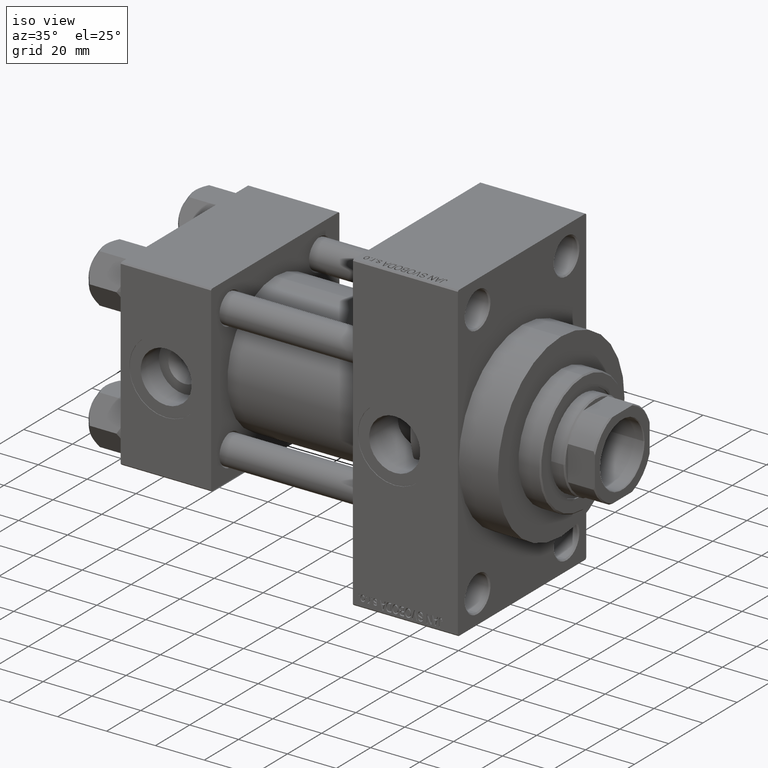
[diagram: clean part render]
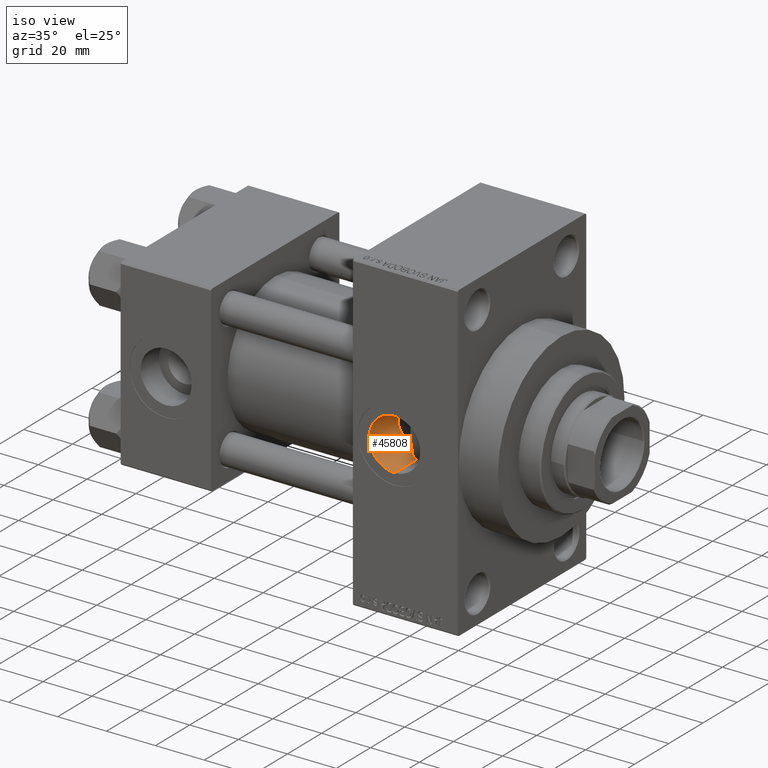
[diagram: same view with one face highlighted and labeled with its STEP entity id]
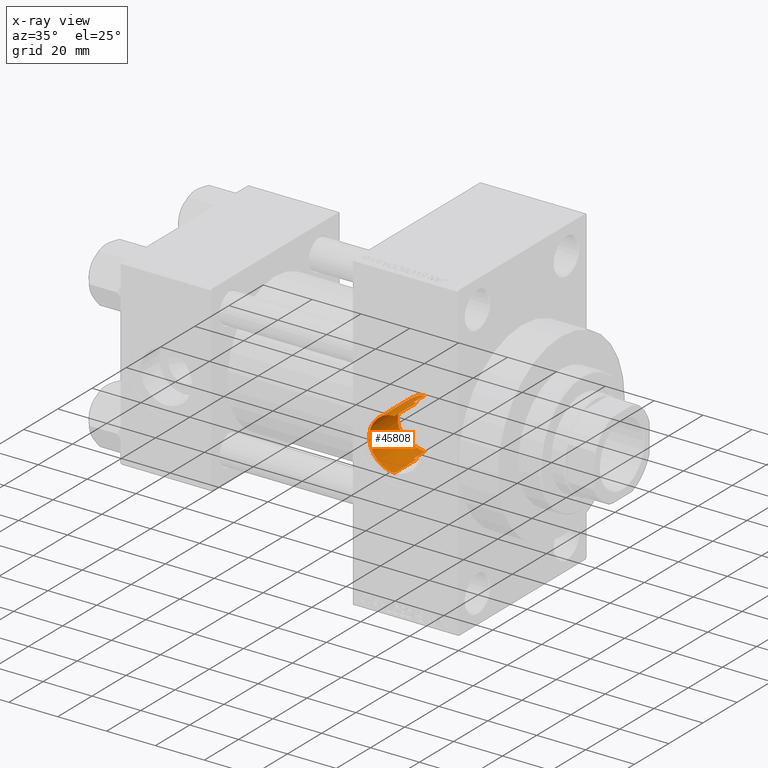
[diagram: x-ray of the same camera — body ghosted, the highlighted face saturated]
A machine part, iso view. The second image highlights one B-rep face of the part: STEP entity #45808.
The next image is the same camera in x-ray: the body ghosted, the highlighted face saturated — about 0% of this face is hidden behind the body in this view.
In plain terms, the highlighted cylindrical surface (edge-blend (fillet) strip) has radius 10.48 mm, axis along (-0, -1, -0).
Its self-contained STEP definition (entity closure, byte-faithful):
#566 = CARTESIAN_POINT ( 'NONE',  ( 101.5344517509937816, -20.49259976991984900, 0.6385949194643817384 ) ) ;
#656 = VERTEX_POINT ( 'NONE', #31120 ) ;
#1070 = DIRECTION ( 'NONE',  ( 0.000000000000000000, 0.000000000000000000, -1.000000000000000000 ) ) ;
#3440 = CARTESIAN_POINT ( 'NONE',  ( 101.9890436469207629, -20.26322258072476856, 3.165949580637788419 ) ) ;
#3528 = VECTOR ( 'NONE', #3993, 1000.000000000000000 ) ;
#3993 = DIRECTION ( 'NONE',  ( -0.000000000000000000, -1.000000000000000000, -8.673617379884036705E-17 ) ) ;
#4294 = VERTEX_POINT ( 'NONE', #31383 ) ;
#5077 = CARTESIAN_POINT ( 'NONE',  ( 110.7400000000000375, -17.66372554134602879, 10.40398000767014786 ) ) ;
#6035 = CARTESIAN_POINT ( 'NONE',  ( 110.7400000000000375, -24.37226292324945831, -10.40398000767014430 ) ) ;
#6231 = CYLINDRICAL_SURFACE ( 'NONE', #40244, 10.48000000000000043 ) ;
#7204 = CARTESIAN_POINT ( 'NONE',  ( 111.5796744023297293, -24.33967132070604222, 10.48000000000000220 ) ) ;
#7270 = CARTESIAN_POINT ( 'NONE',  ( 106.5625638996512379, -18.43095443978125658, 8.980924693845388163 ) ) ;
#7331 = CARTESIAN_POINT ( 'NONE',  ( 112.0000000000000000, -37.29999999999999005, 1.734723475976808635E-17 ) ) ;
#7511 = CARTESIAN_POINT ( 'NONE',  ( 102.7306856739460130, -19.90614274524635263, 4.929954435101433496 ) ) ;
#7667 = B_SPLINE_CURVE_WITH_KNOTS ( 'NONE', 3,
 ( #21991, #7204, #40351, #21747 ),
 .UNSPECIFIED., .F., .F.,
 ( 4, 4 ),
 ( 0.03437190755806011910, 0.03561776921873218565 ),
 .UNSPECIFIED. ) ;
#7977 = CARTESIAN_POINT ( 'NONE',  ( 110.1032516901698131, -17.70914647298970479, -10.32686501227466991 ) ) ;
#8152 = VERTEX_POINT ( 'NONE', #6035 ) ;
#9826 = ORIENTED_EDGE ( 'NONE', *, *, #10999, .F. ) ;
#9851 = CIRCLE ( 'NONE', #28883, 10.48000000000000043 ) ;
#10005 = ORIENTED_EDGE ( 'NONE', *, *, #14153, .T. ) ;
#10176 = ORIENTED_EDGE ( 'NONE', *, *, #23155, .T. ) ;
#10342 = ORIENTED_EDGE ( 'NONE', *, *, #14474, .T. ) ;
#10527 = DIRECTION ( 'NONE',  ( -0.000000000000000000, -1.000000000000000000, -8.673617379884036705E-17 ) ) ;
#10863 = CARTESIAN_POINT ( 'NONE',  ( 104.5952910884241902, -19.10772262467355631, 7.442466219502669844 ) ) ;
#10999 = EDGE_CURVE ( 'NONE', #8152, #32001, #28032, .T. ) ;
#11280 = VERTEX_POINT ( 'NONE', #45058 ) ;
#11315 = B_SPLINE_CURVE_WITH_KNOTS ( 'NONE', 3,
 ( #36608, #7977, #14915, #15374, #25634, #11784, #40187, #22291, #29440, #33033, #36840, #11331, #33260, #29910, #36374, #21820, #14446, #40649, #26320, #44474, #566, #29674, #36133, #40874, #3440, #18253, #7511, #32564, #47134, #28971, #43540, #10863, #25402, #39953, #7270, #32803, #19873, #37291, #23678, #41334, #12479, #5077 ),
 .UNSPECIFIED., .F., .F.,
 ( 4, 2, 2, 2, 2, 2, 2, 2, 2, 2, 2, 2, 2, 2, 2, 2, 2, 2, 2, 2, 4 ),
 ( 0.001255641847759100165, 0.003183192573321262479, 0.005110743298883425011, 0.006074518661664487194, 0.007038294024445550245, 0.008965844750007672878, 0.01089339547556979898, 0.01282094620113192335, 0.01474849692669404945, 0.01667604765225617208, 0.01763982301503723080, 0.01860359837781829298, 0.02053114910338042082, 0.02245869982894254865, 0.02342247519172361431, 0.02438625055450467996, 0.02631380128006680780, 0.02824135200562893910, 0.03016890273119106694, 0.03113267809397215341, 0.03209645345675323641 ),
 .UNSPECIFIED. ) ;
#11331 = CARTESIAN_POINT ( 'NONE',  ( 103.7633480690272307, -19.44527279565067701, -6.509652969840351133 ) ) ;
#11784 = CARTESIAN_POINT ( 'NONE',  ( 106.8359761179690537, -18.35797663056531093, -9.124777428372601307 ) ) ;
#12479 = CARTESIAN_POINT ( 'NONE',  ( 110.4216918361843938, -17.68643129984917906, 10.36543050198943483 ) ) ;
#13062 = EDGE_CURVE ( 'NONE', #28037, #4294, #32437, .T. ) ;
#14153 = EDGE_CURVE ( 'NONE', #4294, #32170, #9851, .T. ) ;
#14342 = CARTESIAN_POINT ( 'NONE',  ( 111.1611364518797984, -24.35049096341792918, -10.45498279016081611 ) ) ;
#14446 = CARTESIAN_POINT ( 'NONE',  ( 101.8164093016029881, -20.34981013074528278, -2.556519587097662249 ) ) ;
#14474 = EDGE_CURVE ( 'NONE', #36283, #11280, #11315, .T. ) ;
#14741 = DIRECTION ( 'NONE',  ( 0.000000000000000000, -1.000000000000000000, -8.673617379884036705E-17 ) ) ;
#14915 = CARTESIAN_POINT ( 'NONE',  ( 109.4784897197294242, -17.78800700420873682, -10.19241299303469184 ) ) ;
#15374 = CARTESIAN_POINT ( 'NONE',  ( 108.2521840516421747, -18.00281376538217515, -9.808015718346263512 ) ) ;
#16771 = EDGE_CURVE ( 'NONE', #11280, #656, #31430, .T. ) ;
#17048 = ORIENTED_EDGE ( 'NONE', *, *, #16771, .T. ) ;
#17333 = EDGE_LOOP ( 'NONE', ( #36040, #36520, #10005, #36347, #9826, #10176, #10342, #17048 ) ) ;
#17445 = CARTESIAN_POINT ( 'NONE',  ( 111.5811236364006049, -24.33967132070604222, -10.47999999999999865 ) ) ;
#18080 = LINE ( 'NONE', #40709, #3528 ) ;
#18100 = LINE ( 'NONE', #47224, #27525 ) ;
#18150 = CARTESIAN_POINT ( 'NONE',  ( 112.0000000000000000, -24.33967132070604222, -10.47999999999999865 ) ) ;
#18253 = CARTESIAN_POINT ( 'NONE',  ( 102.4502868388242831, -20.03936036188455461, 4.364110721517612923 ) ) ;
#19873 = CARTESIAN_POINT ( 'NONE',  ( 108.2502653915909860, -18.00341535633042156, 9.806875701523020794 ) ) ;
#21218 = DIRECTION ( 'NONE',  ( -0.000000000000000000, -1.000000000000000000, -8.673617379884036705E-17 ) ) ;
#21314 = CARTESIAN_POINT ( 'NONE',  ( 112.0000000000000000, -24.33967132070604222, -10.47999999999999865 ) ) ;
#21747 = CARTESIAN_POINT ( 'NONE',  ( 110.7400000000000375, -24.37226292324945476, 10.40398000767014786 ) ) ;
#21820 = CARTESIAN_POINT ( 'NONE',  ( 101.9952270668423182, -20.26018683615192373, -3.183883709941174533 ) ) ;
#21991 = CARTESIAN_POINT ( 'NONE',  ( 112.0000000000000000, -24.33967132070604222, 10.48000000000000220 ) ) ;
#22291 = CARTESIAN_POINT ( 'NONE',  ( 106.0387805937296406, -18.59819633995113719, -8.625125284583473828 ) ) ;
#23155 = EDGE_CURVE ( 'NONE', #8152, #36283, #18100, .T. ) ;
#23678 = CARTESIAN_POINT ( 'NONE',  ( 109.4730346836805097, -17.79626283494864580, 10.17591381474454870 ) ) ;
#23719 = EDGE_CURVE ( 'NONE', #28037, #656, #7667, .T. ) ;
#23791 = CARTESIAN_POINT ( 'NONE',  ( 110.7400000000000375, 37.50100000000001188, 10.40398000767015319 ) ) ;
#25402 = CARTESIAN_POINT ( 'NONE',  ( 105.0477987341367907, -18.93516161738703829, 7.866762516092458135 ) ) ;
#25634 = CARTESIAN_POINT ( 'NONE',  ( 107.6680749064292542, -18.13558458592092748, -9.563370120924318485 ) ) ;
#26320 = CARTESIAN_POINT ( 'NONE',  ( 101.5207372804246120, -20.49962308803801747, -0.6582148057585530676 ) ) ;
#27525 = VECTOR ( 'NONE', #29063, 1000.000000000000000 ) ;
#28032 = B_SPLINE_CURVE_WITH_KNOTS ( 'NONE', 3,
 ( #43676, #14342, #17445, #18150 ),
 .UNSPECIFIED., .F., .F.,
 ( 4, 4 ),
 ( 0.000000000000000000, 0.001255586767787659347 ),
 .UNSPECIFIED. ) ;
#28037 = VERTEX_POINT ( 'NONE', #46818 ) ;
#28077 = DIRECTION ( 'NONE',  ( -0.000000000000000000, -1.000000000000000000, -8.673617379884036705E-17 ) ) ;
#28883 = AXIS2_PLACEMENT_3D ( 'NONE', #7331, #14741, #1070 ) ;
#28971 = CARTESIAN_POINT ( 'NONE',  ( 103.7727607272253465, -19.44423810507252881, 6.499387800490811884 ) ) ;
#29063 = DIRECTION ( 'NONE',  ( 0.000000000000000000, 1.000000000000000000, 8.673617379884036705E-17 ) ) ;
#29440 = CARTESIAN_POINT ( 'NONE',  ( 105.7817464020296114, -18.68242470065479210, -8.441641166352756187 ) ) ;
#29674 = CARTESIAN_POINT ( 'NONE',  ( 101.5939347466840275, -20.46228577735420018, 1.284254479132852289 ) ) ;
#29910 = CARTESIAN_POINT ( 'NONE',  ( 102.7304936477648027, -19.90623884355988338, -4.929486581777925203 ) ) ;
#31116 = VECTOR ( 'NONE', #21218, 1000.000000000000000 ) ;
#31120 = CARTESIAN_POINT ( 'NONE',  ( 110.7400000000000375, -24.37226292324945476, 10.40398000767014786 ) ) ;
#31383 = CARTESIAN_POINT ( 'NONE',  ( 112.0000000000000000, -37.29999999999999005, 10.48000000000000043 ) ) ;
#31430 = LINE ( 'NONE', #23791, #36578 ) ;
#32001 = VERTEX_POINT ( 'NONE', #21314 ) ;
#32170 = VERTEX_POINT ( 'NONE', #40789 ) ;
#32233 = CARTESIAN_POINT ( 'NONE',  ( 112.0000000000000000, 37.50100000000001188, 6.505299771086826549E-15 ) ) ;
#32437 = LINE ( 'NONE', #42935, #31116 ) ;
#32564 = CARTESIAN_POINT ( 'NONE',  ( 103.2218809735026070, -19.68384252053164829, 5.733549167704552474 ) ) ;
#32803 = CARTESIAN_POINT ( 'NONE',  ( 107.6709694355616307, -18.13490766019388190, 9.564633504429533417 ) ) ;
#33033 = CARTESIAN_POINT ( 'NONE',  ( 105.0441017953936296, -18.93649860403725427, -7.863600557485507458 ) ) ;
#33260 = CARTESIAN_POINT ( 'NONE',  ( 103.3844089743150647, -19.61027806035873411, -5.999598090888587087 ) ) ;
#34528 = CARTESIAN_POINT ( 'NONE',  ( 110.7400000000000375, -17.66372554134602524, -10.40398000767014430 ) ) ;
#35568 = DIRECTION ( 'NONE',  ( 0.000000000000000000, 0.000000000000000000, -1.000000000000000000 ) ) ;
#36040 = ORIENTED_EDGE ( 'NONE', *, *, #23719, .F. ) ;
#36133 = CARTESIAN_POINT ( 'NONE',  ( 101.6383901842988422, -20.43966709906151991, 1.603196741083245280 ) ) ;
#36283 = VERTEX_POINT ( 'NONE', #34528 ) ;
#36347 = ORIENTED_EDGE ( 'NONE', *, *, #41521, .F. ) ;
#36374 = CARTESIAN_POINT ( 'NONE',  ( 102.4521693990225941, -20.03848193792882881, -4.367096030259993711 ) ) ;
#36520 = ORIENTED_EDGE ( 'NONE', *, *, #13062, .T. ) ;
#36578 = VECTOR ( 'NONE', #28077, 1000.000000000000000 ) ;
#36608 = CARTESIAN_POINT ( 'NONE',  ( 110.7400000000000375, -17.66372554134602524, -10.40398000767014430 ) ) ;
#36840 = CARTESIAN_POINT ( 'NONE',  ( 104.5920038287612073, -19.10901897896287949, -7.439059721944724757 ) ) ;
#37291 = CARTESIAN_POINT ( 'NONE',  ( 109.1608386087445126, -17.84351846246584472, 10.09310619973157053 ) ) ;
#38915 = FACE_OUTER_BOUND ( 'NONE', #17333, .T. ) ;
#39953 = CARTESIAN_POINT ( 'NONE',  ( 106.0294656774919275, -18.59716438416738882, 8.635495054102031887 ) ) ;
#40187 = CARTESIAN_POINT ( 'NONE',  ( 106.5656606388142222, -18.43607373011430539, -8.966430655055688703 ) ) ;
#40244 = AXIS2_PLACEMENT_3D ( 'NONE', #32233, #10527, #35568 ) ;
#40351 = CARTESIAN_POINT ( 'NONE',  ( 111.1580741051582635, -24.35064928096444348, 10.45461191700782422 ) ) ;
#40649 = CARTESIAN_POINT ( 'NONE',  ( 101.5807450563308407, -20.46875976765762672, -1.296317218321890063 ) ) ;
#40709 = CARTESIAN_POINT ( 'NONE',  ( 112.0000000000000000, 37.50100000000001188, -10.47999999999999332 ) ) ;
#40789 = CARTESIAN_POINT ( 'NONE',  ( 112.0000000000000000, -37.29999999999999005, -10.48000000000000043 ) ) ;
#40874 = CARTESIAN_POINT ( 'NONE',  ( 101.8144624665648479, -20.35078640828185925, 2.548806820612739887 ) ) ;
#41334 = CARTESIAN_POINT ( 'NONE',  ( 110.1046334326617142, -17.71761359792216339, 10.31224326955134352 ) ) ;
#41521 = EDGE_CURVE ( 'NONE', #32001, #32170, #18080, .T. ) ;
#42935 = CARTESIAN_POINT ( 'NONE',  ( 112.0000000000000000, 37.50100000000001188, 10.48000000000000753 ) ) ;
#43540 = CARTESIAN_POINT ( 'NONE',  ( 103.9719890234400026, -19.36059135715748170, 6.743800422138407136 ) ) ;
#43676 = CARTESIAN_POINT ( 'NONE',  ( 110.7400000000000375, -24.37226292324945831, -10.40398000767014430 ) ) ;
#44474 = CARTESIAN_POINT ( 'NONE',  ( 101.5196414013971520, -20.50018332251549324, 0.3113392262350641593 ) ) ;
#45058 = CARTESIAN_POINT ( 'NONE',  ( 110.7400000000000375, -17.66372554134602879, 10.40398000767014786 ) ) ;
#45808 = ADVANCED_FACE ( 'NONE', ( #38915 ), #6231, .F. ) ;
#46818 = CARTESIAN_POINT ( 'NONE',  ( 112.0000000000000000, -24.33967132070604222, 10.48000000000000220 ) ) ;
#47134 = CARTESIAN_POINT ( 'NONE',  ( 103.3974707061882441, -19.60597969207758240, 5.993829959363603521 ) ) ;
#47224 = CARTESIAN_POINT ( 'NONE',  ( 110.7400000000000375, 37.50100000000001188, -10.40398000767013897 ) ) ;